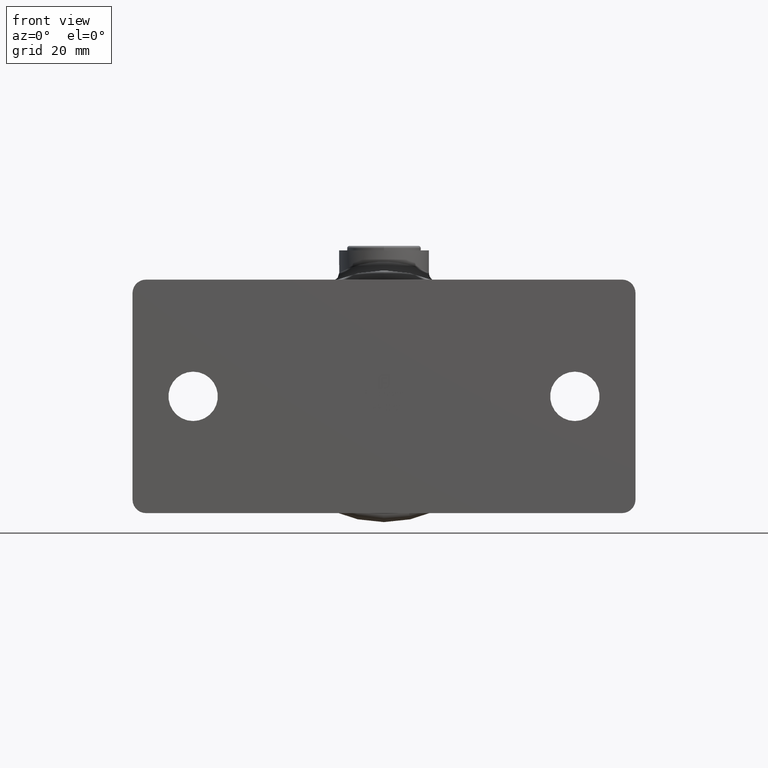
[diagram: clean part render]
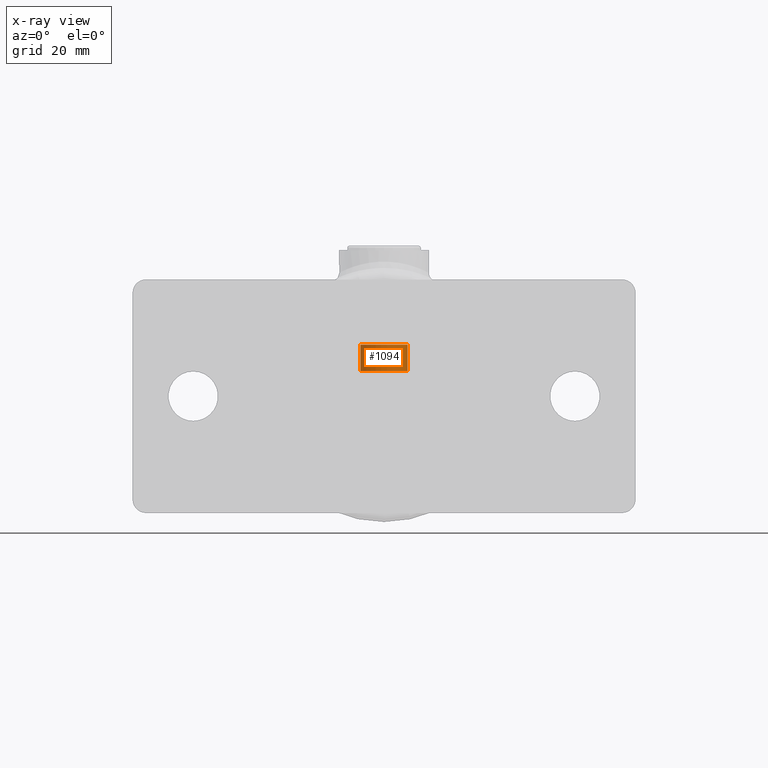
[diagram: x-ray — body ghosted, one internal face saturated and labeled with its STEP entity id]
A machine part, front view, then the same camera in x-ray: the body is ghosted and one INTERNAL B-rep face — a face not visible from any outside direction — is saturated and labeled: STEP entity #1094.
In plain terms, the highlighted cylindrical surface (bore or boss wall) has radius 5.25 mm, axis along (0, 0, 1).
Its self-contained STEP definition (entity closure, byte-faithful):
#254 = CIRCLE ( 'NONE', #14321, 5.250000000000001776 ) ;
#852 = ORIENTED_EDGE ( 'NONE', *, *, #8727, .F. ) ;
#1094 = ADVANCED_FACE ( 'NONE', ( #14389, #4136 ), #11753, .F. ) ;
#1122 = VERTEX_POINT ( 'NONE', #15853 ) ;
#2502 = CARTESIAN_POINT ( 'NONE',  ( 5.250000000000001776, 69.00000000000000000, 5.599999999999996980 ) ) ;
#3590 = DIRECTION ( 'NONE',  ( -0.000000000000000000, 0.000000000000000000, 1.000000000000000000 ) ) ;
#4136 = FACE_OUTER_BOUND ( 'NONE', #13064, .T. ) ;
#4960 = EDGE_LOOP ( 'NONE', ( #8266 ) ) ;
#5029 = VERTEX_POINT ( 'NONE', #2502 ) ;
#5137 = CARTESIAN_POINT ( 'NONE',  ( 0.000000000000000000, 69.00000000000000000, 11.50000000000000000 ) ) ;
#5194 = DIRECTION ( 'NONE',  ( -1.000000000000000000, 0.000000000000000000, 0.000000000000000000 ) ) ;
#5734 = AXIS2_PLACEMENT_3D ( 'NONE', #14459, #11842, #10558 ) ;
#6855 = CIRCLE ( 'NONE', #10088, 5.250000000000001776 ) ;
#8266 = ORIENTED_EDGE ( 'NONE', *, *, #14794, .T. ) ;
#8703 = DIRECTION ( 'NONE',  ( 1.000000000000000000, 0.000000000000000000, 0.000000000000000000 ) ) ;
#8727 = EDGE_CURVE ( 'NONE', #5029, #5029, #254, .T. ) ;
#10088 = AXIS2_PLACEMENT_3D ( 'NONE', #5137, #16697, #5194 ) ;
#10558 = DIRECTION ( 'NONE',  ( 1.000000000000000000, 0.000000000000000000, 0.000000000000000000 ) ) ;
#11753 = CYLINDRICAL_SURFACE ( 'NONE', #5734, 5.250000000000001776 ) ;
#11842 = DIRECTION ( 'NONE',  ( -0.000000000000000000, -0.000000000000000000, 1.000000000000000000 ) ) ;
#13064 = EDGE_LOOP ( 'NONE', ( #852 ) ) ;
#13865 = CARTESIAN_POINT ( 'NONE',  ( 0.000000000000000000, 69.00000000000000000, 5.599999999999996980 ) ) ;
#14321 = AXIS2_PLACEMENT_3D ( 'NONE', #13865, #3590, #8703 ) ;
#14389 = FACE_OUTER_BOUND ( 'NONE', #4960, .T. ) ;
#14459 = CARTESIAN_POINT ( 'NONE',  ( 0.000000000000000000, 69.00000000000000000, -28.00000000000000000 ) ) ;
#14794 = EDGE_CURVE ( 'NONE', #1122, #1122, #6855, .T. ) ;
#15853 = CARTESIAN_POINT ( 'NONE',  ( -5.250000000000001776, 69.00000000000000000, 11.50000000000000000 ) ) ;
#16697 = DIRECTION ( 'NONE',  ( -0.000000000000000000, -0.000000000000000000, 1.000000000000000000 ) ) ;